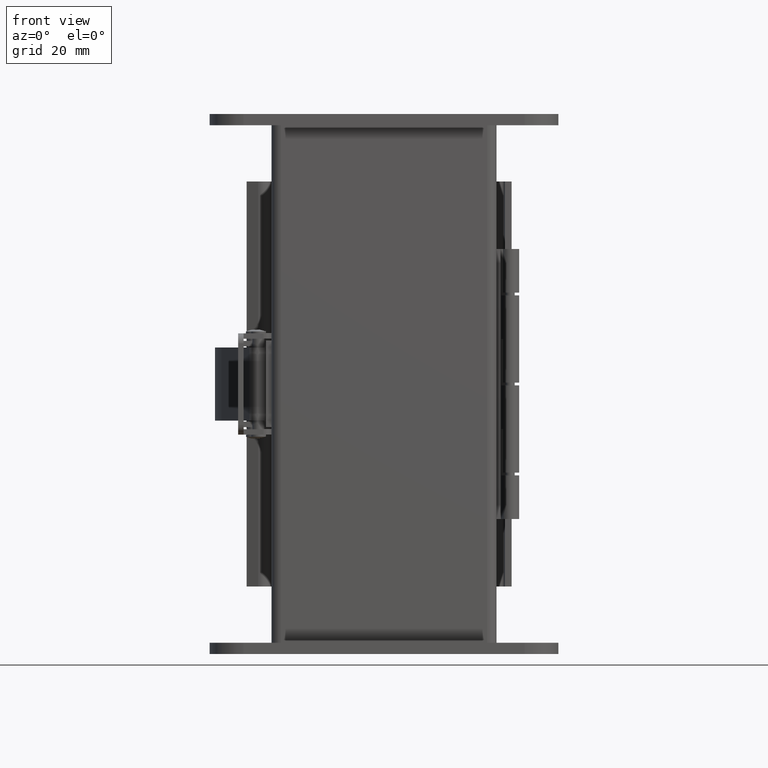
[diagram: clean part render]
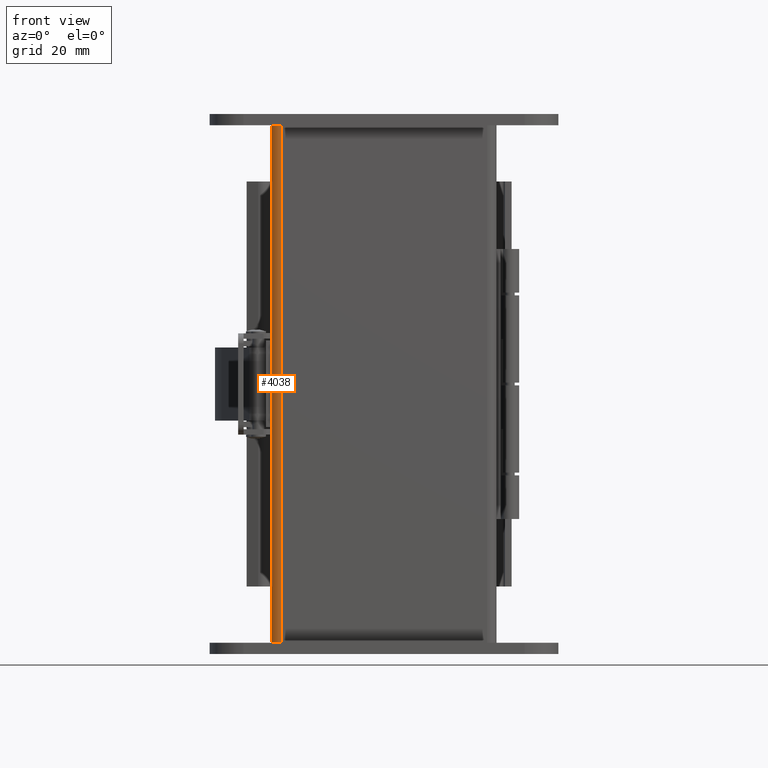
[diagram: same view with one face highlighted and labeled with its STEP entity id]
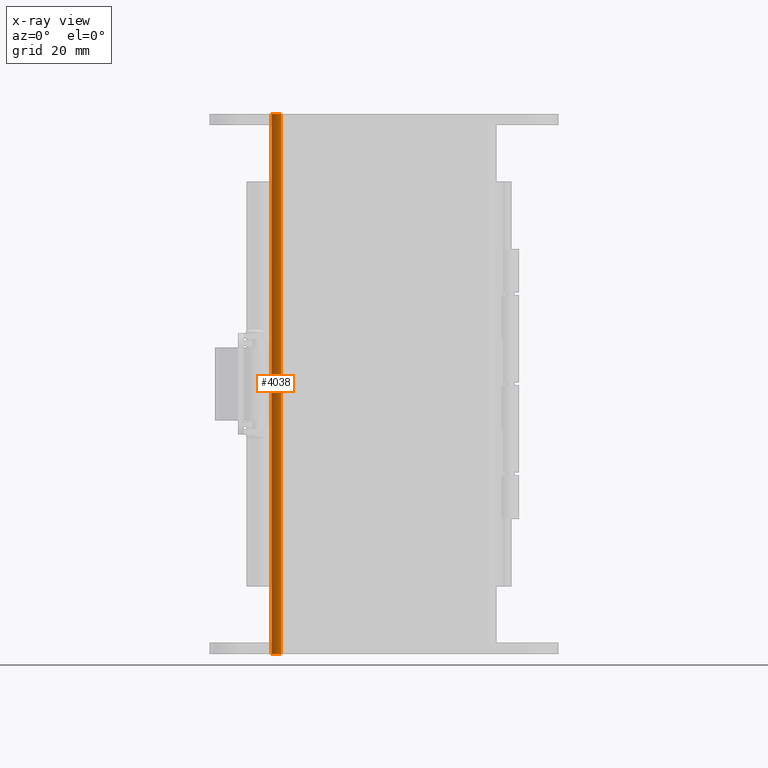
[diagram: x-ray of the same camera — body ghosted, the highlighted face saturated]
A machine part, front view. The second image highlights one B-rep face of the part: STEP entity #4038.
The next image is the same camera in x-ray: the body ghosted, the highlighted face saturated — about 0% of this face is hidden behind the body in this view.
In plain terms, the highlighted cylindrical surface (edge-blend (fillet) strip) has radius 2.6733 mm, axis along (0, -0, -1).
Its self-contained STEP definition (entity closure, byte-faithful):
#349=FACE_OUTER_BOUND('',#584,.T.);
#584=EDGE_LOOP('',(#2821,#2822,#2823,#2824));
#861=CIRCLE('',#4298,0.10525);
#862=CIRCLE('',#4299,0.10525);
#1058=LINE('',#6026,#1448);
#1059=LINE('',#6030,#1449);
#1448=VECTOR('',#4809,6.);
#1449=VECTOR('',#4812,6.);
#1816=VERTEX_POINT('',#5996);
#1818=VERTEX_POINT('',#6004);
#1823=VERTEX_POINT('',#6027);
#1824=VERTEX_POINT('',#6029);
#2216=EDGE_CURVE('',#1816,#1818,#1058,.T.);
#2217=EDGE_CURVE('',#1823,#1816,#861,.T.);
#2218=EDGE_CURVE('',#1824,#1823,#1059,.T.);
#2219=EDGE_CURVE('',#1818,#1824,#862,.T.);
#2821=ORIENTED_EDGE('',*,*,#2216,.F.);
#2822=ORIENTED_EDGE('',*,*,#2217,.F.);
#2823=ORIENTED_EDGE('',*,*,#2218,.F.);
#2824=ORIENTED_EDGE('',*,*,#2219,.F.);
#3815=CYLINDRICAL_SURFACE('',#4297,0.10525);
#4038=ADVANCED_FACE('',(#349),#3815,.T.);
#4297=AXIS2_PLACEMENT_3D('',#6025,#4807,#4808);
#4298=AXIS2_PLACEMENT_3D('',#6028,#4810,#4811);
#4299=AXIS2_PLACEMENT_3D('',#6031,#4813,#4814);
#4807=DIRECTION('center_axis',(1.74838271594513E-16,1.,0.));
#4808=DIRECTION('ref_axis',(0.,0.,-1.));
#4809=DIRECTION('',(-1.75071762876023E-16,-1.,-4.29061052376694E-34));
#4810=DIRECTION('center_axis',(1.74838271594513E-16,1.,0.));
#4811=DIRECTION('ref_axis',(2.49175683982679E-14,0.,-1.));
#4812=DIRECTION('',(1.74838271594513E-16,1.,0.));
#4813=DIRECTION('center_axis',(-1.74838271594513E-16,-1.,0.));
#4814=DIRECTION('ref_axis',(-1.,0.,1.66117122655119E-15));
#5996=CARTESIAN_POINT('',(-1.25,3.,0.10525));
#6004=CARTESIAN_POINT('',(-1.25,-3.,0.10525));
#6025=CARTESIAN_POINT('Origin',(-1.14475,0.,0.10525));
#6026=CARTESIAN_POINT('',(-1.25,-4.57322876385394E-17,0.10525));
#6027=CARTESIAN_POINT('',(-1.14475,3.,-2.18547839493141E-17));
#6028=CARTESIAN_POINT('Origin',(-1.14475,3.,0.10525));
#6029=CARTESIAN_POINT('',(-1.14475,-3.,-2.18547839493141E-17));
#6030=CARTESIAN_POINT('',(-1.14475,-1.5,0.));
#6031=CARTESIAN_POINT('Origin',(-1.14475,-3.,0.10525));